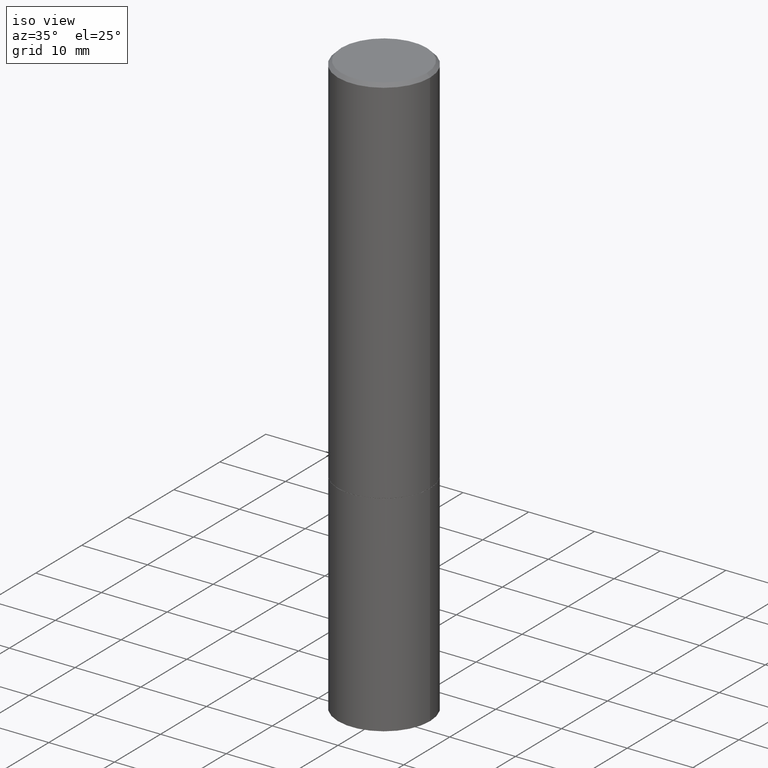
[diagram: clean part render]
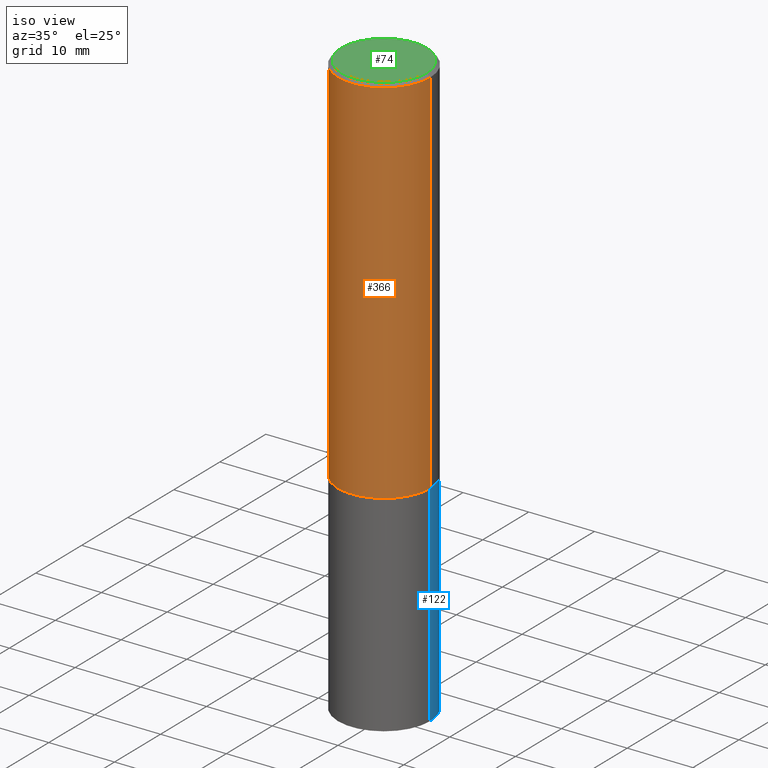
[diagram: same view with three faces highlighted in distinct colors, each labeled with its STEP entity id]
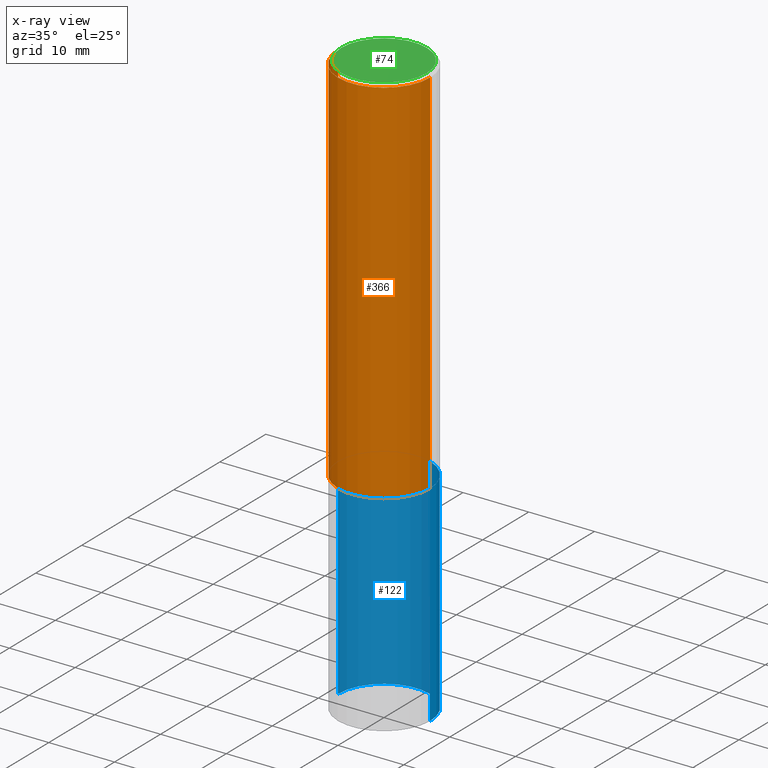
[diagram: x-ray of the same camera — body ghosted, the three highlighted faces saturated]
A machine part, iso view with three faces highlighted in distinct colors.
The next image is the same camera in x-ray (body ghosted, the three faces saturated) — at least one of them is partly hidden behind the body in this view.
Their STEP definitions:

[orange] entity #366 — the highlighted cylindrical surface (partial cylindrical patch) has radius 7.0002 mm, axis along (-0, 0, 1).
#4 = CARTESIAN_POINT ( 'NONE',  ( 0.2755999999999997896, -1.960582874962695828E-15, -0.02000000000000005940 ) ) ;
#18 = DIRECTION ( 'NONE',  ( -2.445468806185136597E-29, 3.491481338843145583E-15, 1.000000000000000000 ) ) ;
#40 = VERTEX_POINT ( 'NONE', #121 ) ;
#47 = CARTESIAN_POINT ( 'NONE',  ( 0.2755999999999999006, -1.924504513970334560E-15, 1.343874319409359427E-29 ) ) ;
#52 = CIRCLE ( 'NONE', #313, 0.2756000000000000671 ) ;
#57 = EDGE_CURVE ( 'NONE', #40, #155, #52, .T. ) ;
#58 = DIRECTION ( 'NONE',  ( 1.000000000000000000, -6.982962677686267499E-15, 4.876176775795935793E-29 ) ) ;
#66 = CARTESIAN_POINT ( 'NONE',  ( -0.2755999999999999006, 1.958255779754835406E-15, -1.355658510874251446E-29 ) ) ;
#71 = VERTEX_POINT ( 'NONE', #266 ) ;
#75 = ORIENTED_EDGE ( 'NONE', *, *, #232, .T. ) ;
#80 = DIRECTION ( 'NONE',  ( -2.445468806185136597E-29, 3.491481338843145583E-15, 1.000000000000000000 ) ) ;
#90 = DIRECTION ( 'NONE',  ( 1.000000000000000000, -6.982962677686264344E-15, 0.000000000000000000 ) ) ;
#101 = ORIENTED_EDGE ( 'NONE', *, *, #198, .F. ) ;
#114 = CARTESIAN_POINT ( 'NONE',  ( 5.485431079153878028E-29, -7.831741791159057755E-15, -2.243099999999999206 ) ) ;
#116 = CYLINDRICAL_SURFACE ( 'NONE', #335, 0.2755999999999999006 ) ;
#118 = CARTESIAN_POINT ( 'NONE',  ( 0.2756000000000000671, -9.756246305129392709E-15, -2.243099999999999206 ) ) ;
#121 = CARTESIAN_POINT ( 'NONE',  ( -0.2756000000000000671, -1.992529929213121965E-15, -2.243099999999999206 ) ) ;
#123 = VERTEX_POINT ( 'NONE', #4 ) ;
#135 = DIRECTION ( 'NONE',  ( 1.000000000000000000, -6.982962677686267499E-15, 0.000000000000000000 ) ) ;
#143 = FACE_OUTER_BOUND ( 'NONE', #278, .T. ) ;
#144 = DIRECTION ( 'NONE',  ( -2.445468806185136597E-29, 3.491481338843145583E-15, 1.000000000000000000 ) ) ;
#155 = VERTEX_POINT ( 'NONE', #118 ) ;
#161 = DIRECTION ( 'NONE',  ( -2.445468806185136877E-29, 3.491481338843145188E-15, 1.000000000000000000 ) ) ;
#169 = VECTOR ( 'NONE', #161, 39.37007874015748143 ) ;
#198 = EDGE_CURVE ( 'NONE', #40, #71, #220, .T. ) ;
#214 = ORIENTED_EDGE ( 'NONE', *, *, #247, .F. ) ;
#220 = LINE ( 'NONE', #66, #287 ) ;
#226 = CARTESIAN_POINT ( 'NONE',  ( 4.890937612370288047E-31, -6.982962677686311331E-17, -0.02000000000000005940 ) ) ;
#232 = EDGE_CURVE ( 'NONE', #155, #123, #250, .T. ) ;
#247 = EDGE_CURVE ( 'NONE', #71, #123, #308, .T. ) ;
#250 = LINE ( 'NONE', #47, #169 ) ;
#252 = DIRECTION ( 'NONE',  ( -2.445468806185136877E-29, 3.491481338843145188E-15, 1.000000000000000000 ) ) ;
#253 = ORIENTED_EDGE ( 'NONE', *, *, #57, .T. ) ;
#259 = AXIS2_PLACEMENT_3D ( 'NONE', #226, #18, #135 ) ;
#266 = CARTESIAN_POINT ( 'NONE',  ( -0.2755999999999997896, 1.854674887193470472E-15, -0.02000000000000005940 ) ) ;
#278 = EDGE_LOOP ( 'NONE', ( #101, #253, #75, #214 ) ) ;
#287 = VECTOR ( 'NONE', #252, 39.37007874015748143 ) ;
#308 = CIRCLE ( 'NONE', #259, 0.2755999999999997896 ) ;
#313 = AXIS2_PLACEMENT_3D ( 'NONE', #114, #144, #90 ) ;
#335 = AXIS2_PLACEMENT_3D ( 'NONE', #345, #80, #58 ) ;
#345 = CARTESIAN_POINT ( 'NONE',  ( 0.000000000000000000, 0.000000000000000000, 0.000000000000000000 ) ) ;
#366 = ADVANCED_FACE ( 'NONE', ( #143 ), #116, .T. ) ;

[blue] entity #122 — the highlighted cylindrical surface (partial cylindrical patch) has radius 7.0002 mm, axis along (-0, 0, 1).
#3 = DIRECTION ( 'NONE',  ( 1.000000000000000000, -6.982962677686267499E-15, 4.876176775795935793E-29 ) ) ;
#10 = DIRECTION ( 'NONE',  ( -2.445468806185136597E-29, 3.491481338843145583E-15, 1.000000000000000000 ) ) ;
#25 = CIRCLE ( 'NONE', #275, 0.2756000000000000116 ) ;
#33 = CARTESIAN_POINT ( 'NONE',  ( 0.2756000000000000116, -9.759737786468235716E-15, -2.244099999999999540 ) ) ;
#35 = CARTESIAN_POINT ( 'NONE',  ( 0.000000000000000000, 0.000000000000000000, 0.000000000000000000 ) ) ;
#38 = ORIENTED_EDGE ( 'NONE', *, *, #350, .F. ) ;
#50 = CARTESIAN_POINT ( 'NONE',  ( 8.568678149992099474E-29, -1.223380146317249786E-14, -3.503899999999999793 ) ) ;
#55 = CARTESIAN_POINT ( 'NONE',  ( -0.2756000000000000116, -8.076261588080363510E-15, -3.503899999999999793 ) ) ;
#59 = DIRECTION ( 'NONE',  ( -2.445468806185136597E-29, 3.491481338843145583E-15, 1.000000000000000000 ) ) ;
#67 = EDGE_LOOP ( 'NONE', ( #184, #362, #38, #181 ) ) ;
#81 = LINE ( 'NONE', #229, #206 ) ;
#88 = CARTESIAN_POINT ( 'NONE',  ( 5.487876547960063631E-29, -7.835233272497900762E-15, -2.244099999999999540 ) ) ;
#89 = EDGE_CURVE ( 'NONE', #97, #340, #94, .T. ) ;
#93 = CIRCLE ( 'NONE', #321, 0.2756000000000000116 ) ;
#94 = LINE ( 'NONE', #314, #267 ) ;
#97 = VERTEX_POINT ( 'NONE', #271 ) ;
#122 = ADVANCED_FACE ( 'NONE', ( #269 ), #342, .T. ) ;
#125 = CARTESIAN_POINT ( 'NONE',  ( -0.2756000000000000116, -8.076261588080363510E-15, -2.244099999999999540 ) ) ;
#176 = EDGE_CURVE ( 'NONE', #295, #227, #81, .T. ) ;
#181 = ORIENTED_EDGE ( 'NONE', *, *, #89, .F. ) ;
#184 = ORIENTED_EDGE ( 'NONE', *, *, #277, .T. ) ;
#201 = DIRECTION ( 'NONE',  ( -2.445468806185136597E-29, 3.491481338843145583E-15, 1.000000000000000000 ) ) ;
#206 = VECTOR ( 'NONE', #256, 39.37007874015748143 ) ;
#227 = VERTEX_POINT ( 'NONE', #125 ) ;
#229 = CARTESIAN_POINT ( 'NONE',  ( -0.2756000000000000116, 1.958255779754836195E-15, -1.355658510874252007E-29 ) ) ;
#249 = AXIS2_PLACEMENT_3D ( 'NONE', #35, #59, #3 ) ;
#256 = DIRECTION ( 'NONE',  ( -2.445468806185136877E-29, 3.491481338843145188E-15, 1.000000000000000000 ) ) ;
#263 = DIRECTION ( 'NONE',  ( -2.445468806185136877E-29, 3.491481338843145188E-15, 1.000000000000000000 ) ) ;
#267 = VECTOR ( 'NONE', #263, 39.37007874015748143 ) ;
#269 = FACE_OUTER_BOUND ( 'NONE', #67, .T. ) ;
#271 = CARTESIAN_POINT ( 'NONE',  ( 0.2756000000000000116, -1.415830597714283281E-14, -3.503899999999999793 ) ) ;
#275 = AXIS2_PLACEMENT_3D ( 'NONE', #88, #10, #317 ) ;
#277 = EDGE_CURVE ( 'NONE', #97, #295, #93, .T. ) ;
#295 = VERTEX_POINT ( 'NONE', #55 ) ;
#314 = CARTESIAN_POINT ( 'NONE',  ( 0.2756000000000000116, -1.924504513970335348E-15, 1.343874319409359987E-29 ) ) ;
#315 = DIRECTION ( 'NONE',  ( 1.000000000000000000, -6.982962677686265922E-15, 0.000000000000000000 ) ) ;
#317 = DIRECTION ( 'NONE',  ( 1.000000000000000000, -6.982962677686265922E-15, 0.000000000000000000 ) ) ;
#321 = AXIS2_PLACEMENT_3D ( 'NONE', #50, #201, #315 ) ;
#340 = VERTEX_POINT ( 'NONE', #33 ) ;
#342 = CYLINDRICAL_SURFACE ( 'NONE', #249, 0.2756000000000000116 ) ;
#350 = EDGE_CURVE ( 'NONE', #340, #227, #25, .T. ) ;
#362 = ORIENTED_EDGE ( 'NONE', *, *, #176, .T. ) ;

[green] entity #74 — the highlighted planar face has unit normal (0, -0, -1).
#7 = CIRCLE ( 'NONE', #258, 0.2555999999999997163 ) ;
#8 = FACE_OUTER_BOUND ( 'NONE', #187, .T. ) ;
#11 = DIRECTION ( 'NONE',  ( 1.000000000000000000, -6.982962677686267499E-15, 4.876201967404967742E-29 ) ) ;
#31 = DIRECTION ( 'NONE',  ( 1.000000000000000000, -6.982962677686267499E-15, 4.876201967404967742E-29 ) ) ;
#53 = AXIS2_PLACEMENT_3D ( 'NONE', #349, #240, #11 ) ;
#61 = CARTESIAN_POINT ( 'NONE',  ( -0.2555999999999997163, 1.819760073805039218E-15, 8.537024980188219272E-18 ) ) ;
#64 = CARTESIAN_POINT ( 'NONE',  ( -2.087702828670439639E-46, 2.980686340760894400E-32, 8.537024980200822558E-18 ) ) ;
#65 = VERTEX_POINT ( 'NONE', #61 ) ;
#69 = CARTESIAN_POINT ( 'NONE',  ( 0.2555999999999997163, -1.857063081596548453E-15, 8.537024980213556806E-18 ) ) ;
#74 = ADVANCED_FACE ( 'NONE', ( #8 ), #117, .F. ) ;
#77 = EDGE_CURVE ( 'NONE', #65, #255, #111, .T. ) ;
#103 = EDGE_CURVE ( 'NONE', #255, #65, #7, .T. ) ;
#111 = CIRCLE ( 'NONE', #53, 0.2555999999999997163 ) ;
#117 = PLANE ( 'NONE',  #177 ) ;
#177 = AXIS2_PLACEMENT_3D ( 'NONE', #239, #205, #217 ) ;
#183 = DIRECTION ( 'NONE',  ( -2.445468806185136597E-29, 3.491481338843145583E-15, 1.000000000000000000 ) ) ;
#187 = EDGE_LOOP ( 'NONE', ( #355, #327 ) ) ;
#205 = DIRECTION ( 'NONE',  ( 2.438088387897960049E-29, -3.491481338843145188E-15, -1.000000000000000000 ) ) ;
#217 = DIRECTION ( 'NONE',  ( -1.000000000000000000, 6.982962677686265922E-15, -4.876176775795935793E-29 ) ) ;
#239 = CARTESIAN_POINT ( 'NONE',  ( 1.784845260416607569E-15, 0.2555999999999997163, -8.881541177182066117E-16 ) ) ;
#240 = DIRECTION ( 'NONE',  ( -2.445468806185136597E-29, 3.491481338843145583E-15, 1.000000000000000000 ) ) ;
#255 = VERTEX_POINT ( 'NONE', #69 ) ;
#258 = AXIS2_PLACEMENT_3D ( 'NONE', #64, #183, #31 ) ;
#327 = ORIENTED_EDGE ( 'NONE', *, *, #103, .T. ) ;
#349 = CARTESIAN_POINT ( 'NONE',  ( -2.087702828670439639E-46, 2.980686340760894400E-32, 8.537024980200822558E-18 ) ) ;
#355 = ORIENTED_EDGE ( 'NONE', *, *, #77, .T. ) ;